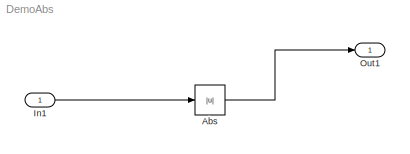
MODEL DemoAbs
KIND model
BLOCK [Abs] Abs
  SID = 3
  SaturateOnIntegerOverflow = off
BLOCK [Inport] In1
  IconDisplay = Port number
  SID = 1
BLOCK [Outport] Out1
  IconDisplay = Port number
  SID = 2
LINE Abs:1 -> Out1:1
LINE In1:1 -> Abs:1
